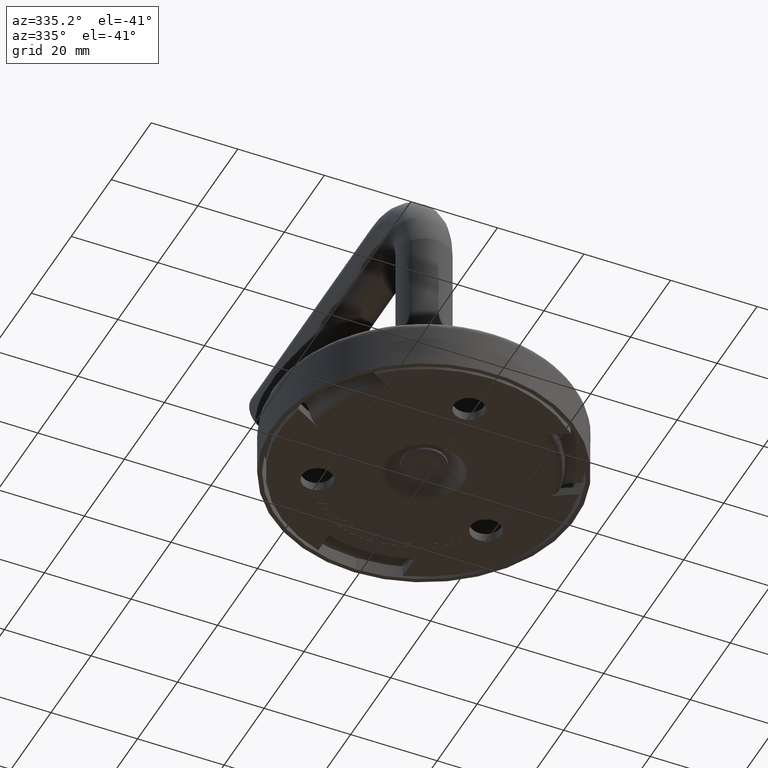
[diagram: clean part render]
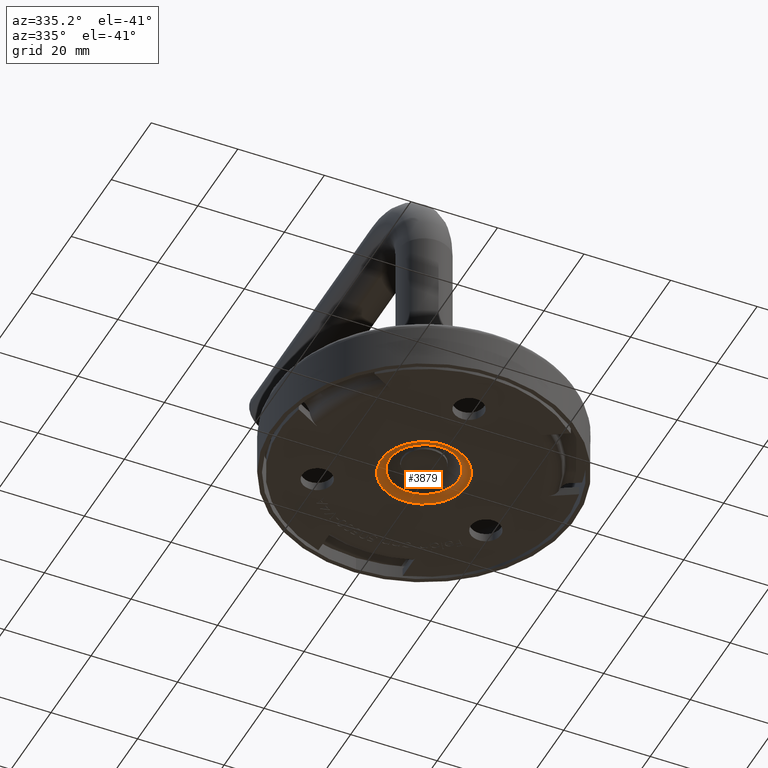
[diagram: same view with one face highlighted and labeled with its STEP entity id]
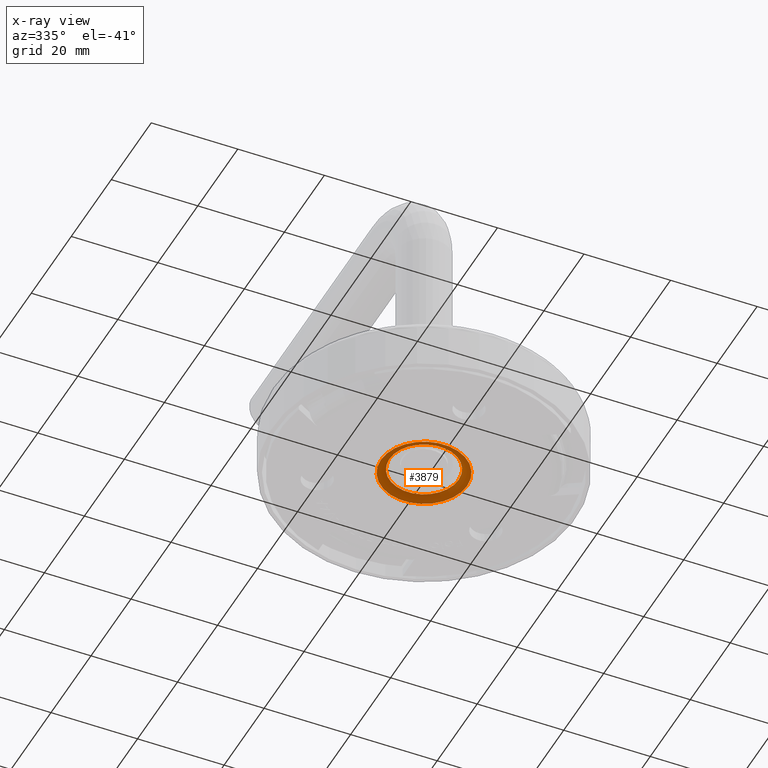
[diagram: x-ray of the same camera — body ghosted, the highlighted face saturated]
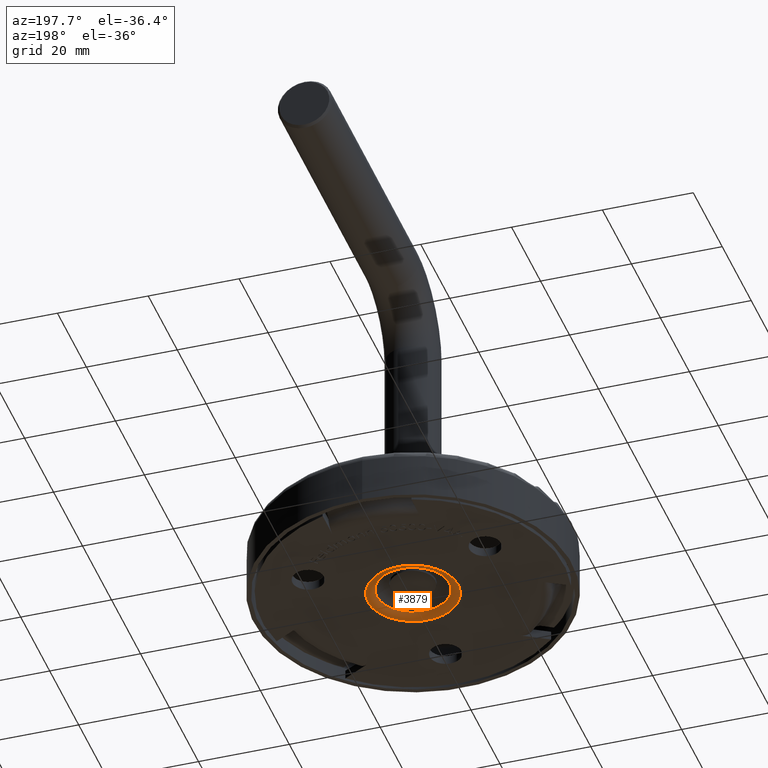
[diagram: same view with one face highlighted and labeled with its STEP entity id]
A machine part, auxiliary view. The second image highlights one B-rep face of the part: STEP entity #3879.
The next image is the same camera in x-ray: the body ghosted, the highlighted face saturated — about 0% of this face is hidden behind the body in this view.
A second angle (auxiliary view) of the same face is appended — the face is thin or edge-on in the first view.
In plain terms, the highlighted toroidal blend (fillet) surface has major radius 9.9685 mm and minor (blend) radius 2.5 mm.
Its self-contained STEP definition (entity closure, byte-faithful):
#276 = DIRECTION ( 'NONE',  ( 1.053822821695700200E-030, 2.095411779493315200E-031, -1.000000000000000000 ) ) ;
#632 = EDGE_CURVE ( 'NONE', #10071, #10071, #12401, .T. ) ;
#637 = FACE_OUTER_BOUND ( 'NONE', #12197, .T. ) ;
#2514 = DIRECTION ( 'NONE',  ( 1.053822821695700200E-030, 2.095411779493315200E-031, -1.000000000000000000 ) ) ;
#2624 = CARTESIAN_POINT ( 'NONE',  ( 1.010515034502719300E-030, 2.009298966637411500E-031, -0.9589041095890342700 ) ) ;
#2735 = DIRECTION ( 'NONE',  ( -1.000000000000000000, -8.381647117973246900E-031, 1.053822821695697600E-030 ) ) ;
#2812 = CIRCLE ( 'NONE', #6989, 9.968507926465704800 ) ;
#3640 = CARTESIAN_POINT ( 'NONE',  ( -7.999999999999970700, -6.504387797714830800E-030, -0.9589041095890342700 ) ) ;
#3879 = ADVANCED_FACE ( 'NONE', ( #9750, #637 ), #12434, .T. ) ;
#4440 = ORIENTED_EDGE ( 'NONE', *, *, #632, .T. ) ;
#6032 = DIRECTION ( 'NONE',  ( -1.000000000000000000, -8.381647117973246900E-031, 0.0000000000000000000 ) ) ;
#6989 = AXIS2_PLACEMENT_3D ( 'NONE', #8313, #9571, #2735 ) ;
#7359 = AXIS2_PLACEMENT_3D ( 'NONE', #12788, #2514, #12739 ) ;
#7382 = ORIENTED_EDGE ( 'NONE', *, *, #11551, .F. ) ;
#7757 = VERTEX_POINT ( 'NONE', #9117 ) ;
#8313 = CARTESIAN_POINT ( 'NONE',  ( 0.0000000000000000000, 0.0000000000000000000, 0.0000000000000000000 ) ) ;
#8666 = AXIS2_PLACEMENT_3D ( 'NONE', #2624, #276, #6032 ) ;
#9117 = CARTESIAN_POINT ( 'NONE',  ( -9.968507926465704800, -8.355251573235474200E-030, 1.050504115116401600E-029 ) ) ;
#9571 = DIRECTION ( 'NONE',  ( 1.053822821695700200E-030, 2.095411779493315200E-031, -1.000000000000000000 ) ) ;
#9750 = FACE_OUTER_BOUND ( 'NONE', #13287, .T. ) ;
#10071 = VERTEX_POINT ( 'NONE', #3640 ) ;
#11551 = EDGE_CURVE ( 'NONE', #7757, #7757, #2812, .T. ) ;
#12197 = EDGE_LOOP ( 'NONE', ( #4440 ) ) ;
#12401 = CIRCLE ( 'NONE', #8666, 7.999999999999970700 ) ;
#12434 = TOROIDAL_SURFACE ( 'NONE', #7359, 9.968507926465742100, 2.500000000000000000 ) ;
#12739 = DIRECTION ( 'NONE',  ( -1.000000000000000000, -8.381647117973246900E-031, -1.053822821695700200E-030 ) ) ;
#12788 = CARTESIAN_POINT ( 'NONE',  ( 2.634557054239233200E-030, 5.238529448733252600E-031, -2.499999999999985300 ) ) ;
#13287 = EDGE_LOOP ( 'NONE', ( #7382 ) ) ;